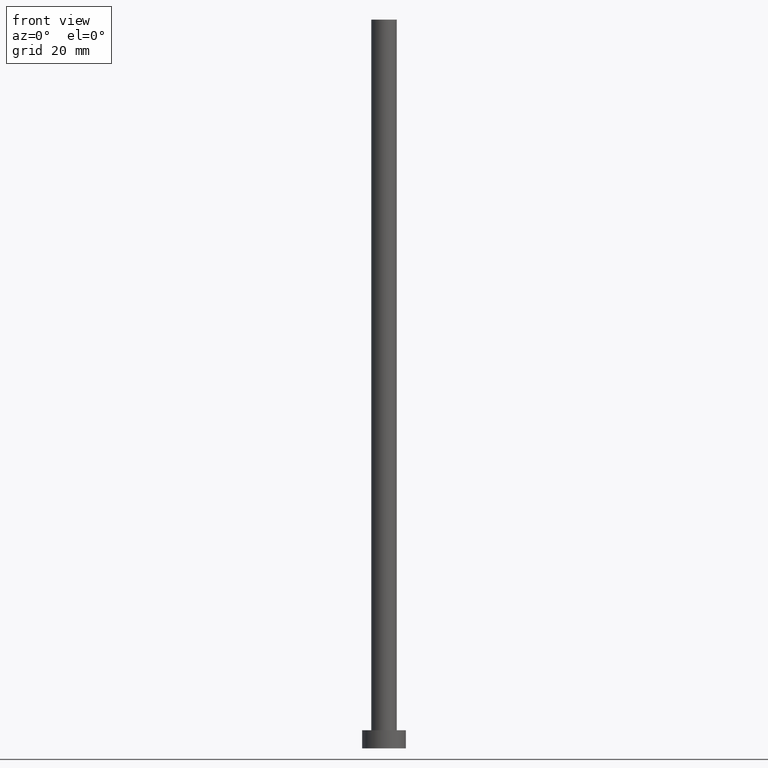
[diagram: clean part render]
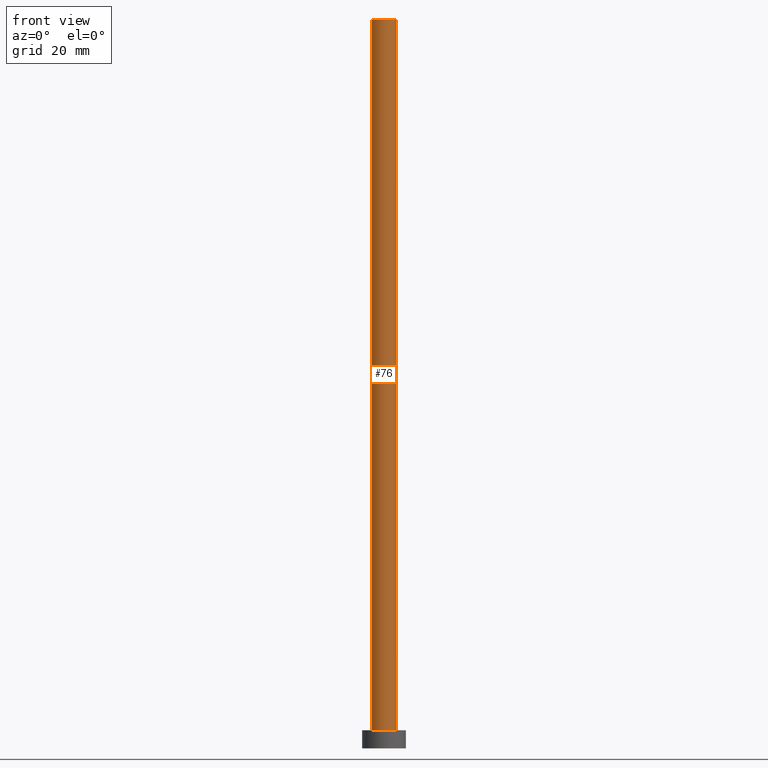
[diagram: same view with one face highlighted and labeled with its STEP entity id]
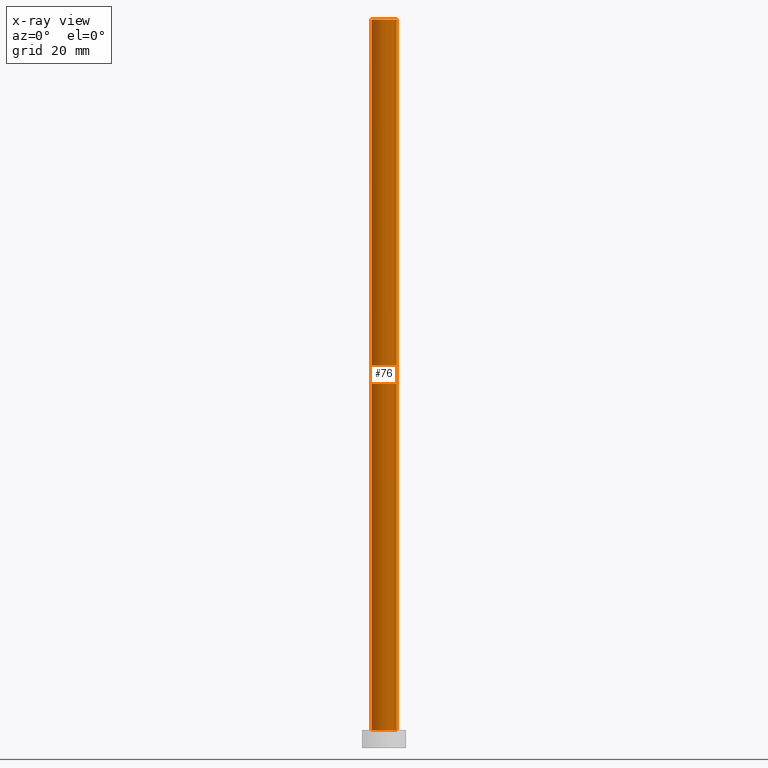
[diagram: x-ray of the same camera — body ghosted, the highlighted face saturated]
A machine part, front view. The second image highlights one B-rep face of the part: STEP entity #76.
The next image is the same camera in x-ray: the body ghosted, the highlighted face saturated — about 0% of this face is hidden behind the body in this view.
In plain terms, the highlighted cylindrical surface (edge-blend (fillet) strip) has radius 3.5 mm, axis along (-0, -0, -1).
Its self-contained STEP definition (entity closure, byte-faithful):
#6 = VECTOR ( 'NONE', #192, 1000.000000000000000 ) ;
#9 = EDGE_CURVE ( 'NONE', #247, #106, #165, .T. ) ;
#12 = ORIENTED_EDGE ( 'NONE', *, *, #37, .F. ) ;
#14 = CARTESIAN_POINT ( 'NONE',  ( -3.500000000000000000, 0.000000000000000000, 200.0000000000000000 ) ) ;
#15 = CARTESIAN_POINT ( 'NONE',  ( 0.000000000000000000, 0.000000000000000000, 200.0000000000000000 ) ) ;
#18 = EDGE_LOOP ( 'NONE', ( #39, #12, #77, #28 ) ) ;
#20 = DIRECTION ( 'NONE',  ( -0.000000000000000000, -0.000000000000000000, -1.000000000000000000 ) ) ;
#26 = EDGE_CURVE ( 'NONE', #93, #106, #212, .T. ) ;
#28 = ORIENTED_EDGE ( 'NONE', *, *, #9, .T. ) ;
#37 = EDGE_CURVE ( 'NONE', #150, #93, #66, .T. ) ;
#39 = ORIENTED_EDGE ( 'NONE', *, *, #26, .F. ) ;
#50 = DIRECTION ( 'NONE',  ( 0.000000000000000000, 0.000000000000000000, 1.000000000000000000 ) ) ;
#51 = CARTESIAN_POINT ( 'NONE',  ( 3.500000000000000000, 4.286263797015736595E-16, 200.0000000000000000 ) ) ;
#55 = LINE ( 'NONE', #151, #101 ) ;
#66 = CIRCLE ( 'NONE', #217, 3.500000000000000000 ) ;
#76 = ADVANCED_FACE ( 'NONE', ( #161 ), #200, .T. ) ;
#77 = ORIENTED_EDGE ( 'NONE', *, *, #91, .T. ) ;
#83 = DIRECTION ( 'NONE',  ( -1.000000000000000000, 0.000000000000000000, 0.000000000000000000 ) ) ;
#91 = EDGE_CURVE ( 'NONE', #150, #247, #55, .T. ) ;
#93 = VERTEX_POINT ( 'NONE', #51 ) ;
#101 = VECTOR ( 'NONE', #168, 1000.000000000000000 ) ;
#106 = VERTEX_POINT ( 'NONE', #110 ) ;
#110 = CARTESIAN_POINT ( 'NONE',  ( 3.500000000000000000, 4.286263797015736595E-16, 5.000000000000000000 ) ) ;
#125 = DIRECTION ( 'NONE',  ( 1.000000000000000000, 0.000000000000000000, 0.000000000000000000 ) ) ;
#150 = VERTEX_POINT ( 'NONE', #14 ) ;
#151 = CARTESIAN_POINT ( 'NONE',  ( -3.500000000000000000, 0.000000000000000000, 200.0000000000000000 ) ) ;
#161 = FACE_OUTER_BOUND ( 'NONE', #18, .T. ) ;
#165 = CIRCLE ( 'NONE', #186, 3.500000000000000000 ) ;
#168 = DIRECTION ( 'NONE',  ( -0.000000000000000000, -0.000000000000000000, -1.000000000000000000 ) ) ;
#179 = AXIS2_PLACEMENT_3D ( 'NONE', #201, #20, #83 ) ;
#186 = AXIS2_PLACEMENT_3D ( 'NONE', #194, #50, #229 ) ;
#192 = DIRECTION ( 'NONE',  ( -0.000000000000000000, -0.000000000000000000, -1.000000000000000000 ) ) ;
#194 = CARTESIAN_POINT ( 'NONE',  ( 0.000000000000000000, 0.000000000000000000, 5.000000000000000000 ) ) ;
#200 = CYLINDRICAL_SURFACE ( 'NONE', #179, 3.500000000000000000 ) ;
#201 = CARTESIAN_POINT ( 'NONE',  ( 0.000000000000000000, 0.000000000000000000, 200.0000000000000000 ) ) ;
#212 = LINE ( 'NONE', #253, #6 ) ;
#217 = AXIS2_PLACEMENT_3D ( 'NONE', #15, #238, #125 ) ;
#229 = DIRECTION ( 'NONE',  ( 1.000000000000000000, 0.000000000000000000, 0.000000000000000000 ) ) ;
#238 = DIRECTION ( 'NONE',  ( 0.000000000000000000, 0.000000000000000000, 1.000000000000000000 ) ) ;
#247 = VERTEX_POINT ( 'NONE', #248 ) ;
#248 = CARTESIAN_POINT ( 'NONE',  ( -3.500000000000000000, 0.000000000000000000, 5.000000000000000000 ) ) ;
#253 = CARTESIAN_POINT ( 'NONE',  ( 3.500000000000000000, 4.286263797015736595E-16, 200.0000000000000000 ) ) ;